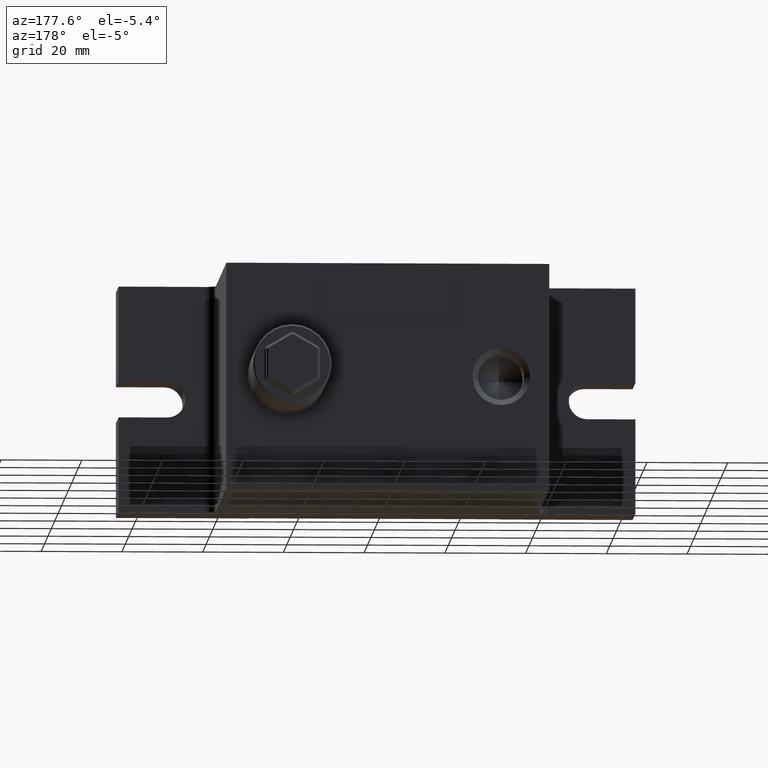
[diagram: clean part render]
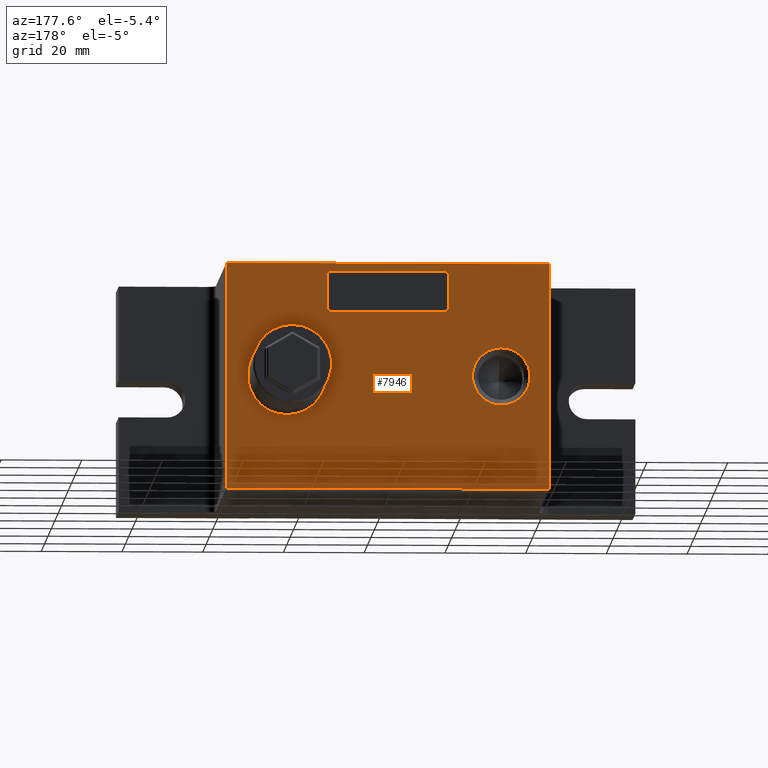
[diagram: same view with one face highlighted and labeled with its STEP entity id]
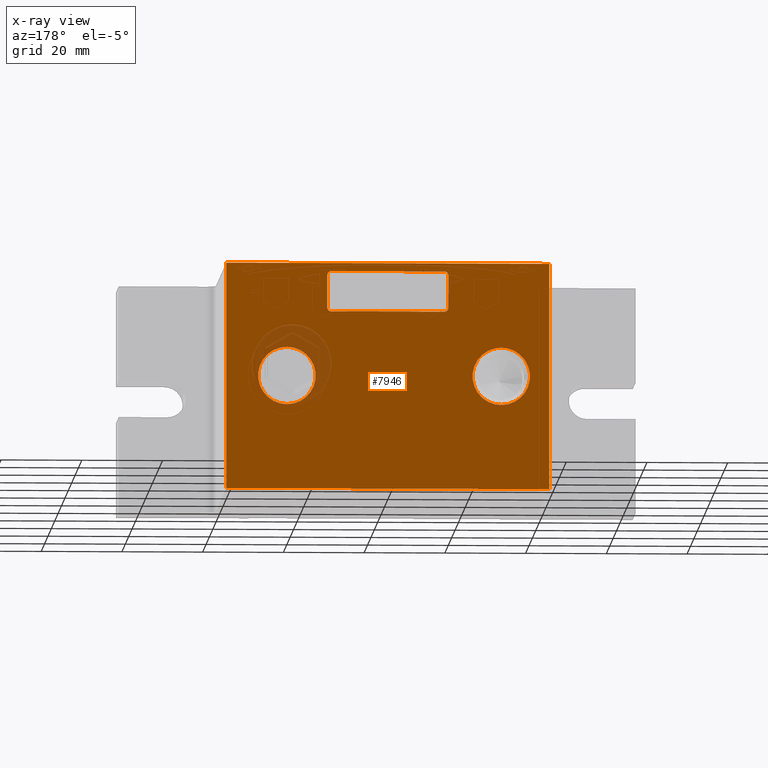
[diagram: x-ray of the same camera — body ghosted, the highlighted face saturated]
A machine part, auxiliary view. The second image highlights one B-rep face of the part: STEP entity #7946.
The next image is the same camera in x-ray: the body ghosted, the highlighted face saturated — about 4% of this face is hidden behind the body in this view.
In plain terms, the highlighted planar face has unit normal (0, -1, 0).
Its self-contained STEP definition (entity closure, byte-faithful):
#19 = CARTESIAN_POINT ( 'NONE',  ( -28.10000000000000100, 40.00000000000000000, 0.0000000000000000000 ) ) ;
#176 = VECTOR ( 'NONE', #7250, 1000.000000000000000 ) ;
#245 = ORIENTED_EDGE ( 'NONE', *, *, #17044, .T. ) ;
#352 = VECTOR ( 'NONE', #12016, 1000.000000000000000 ) ;
#1291 = CARTESIAN_POINT ( 'NONE',  ( -64.00000000000000000, 40.00000000000000000, 28.00000000000000000 ) ) ;
#1369 = CARTESIAN_POINT ( 'NONE',  ( -15.00000000000000000, 40.00000000000000000, 26.00000000000000000 ) ) ;
#1432 = EDGE_CURVE ( 'NONE', #13777, #20425, #1862, .T. ) ;
#1454 = EDGE_CURVE ( 'NONE', #15053, #16449, #8972, .T. ) ;
#1533 = LINE ( 'NONE', #16703, #14431 ) ;
#1786 = DIRECTION ( 'NONE',  ( 0.0000000000000000000, 0.0000000000000000000, -1.000000000000000000 ) ) ;
#1862 = CIRCLE ( 'NONE', #5767, 7.125000000000000000 ) ;
#1883 = AXIS2_PLACEMENT_3D ( 'NONE', #10805, #14509, #10729 ) ;
#2029 = VERTEX_POINT ( 'NONE', #3162 ) ;
#2461 = ORIENTED_EDGE ( 'NONE', *, *, #14290, .F. ) ;
#2755 = EDGE_LOOP ( 'NONE', ( #3056, #10369 ) ) ;
#2890 = CARTESIAN_POINT ( 'NONE',  ( -14.00000000000000000, 40.00000000000000000, 26.00000000000000000 ) ) ;
#3053 = ORIENTED_EDGE ( 'NONE', *, *, #15537, .F. ) ;
#3056 = ORIENTED_EDGE ( 'NONE', *, *, #10620, .T. ) ;
#3162 = CARTESIAN_POINT ( 'NONE',  ( -14.00000000000000000, 40.00000000000000000, 16.00000000000000000 ) ) ;
#3293 = LINE ( 'NONE', #1291, #21402 ) ;
#3339 = FACE_BOUND ( 'NONE', #2755, .T. ) ;
#4197 = CARTESIAN_POINT ( 'NONE',  ( -40.00000000000000000, 40.00000000000000000, 28.00000000000000000 ) ) ;
#4229 = CARTESIAN_POINT ( 'NONE',  ( -15.00000000000000000, 40.00000000000000000, 17.00000000000000000 ) ) ;
#4357 = ORIENTED_EDGE ( 'NONE', *, *, #20302, .T. ) ;
#4426 = DIRECTION ( 'NONE',  ( 1.734723475976804900E-016, 0.0000000000000000000, -1.000000000000000000 ) ) ;
#4595 = CARTESIAN_POINT ( 'NONE',  ( 14.00000000000000000, 40.00000000000000000, 17.00000000000000000 ) ) ;
#4707 = EDGE_CURVE ( 'NONE', #21827, #22073, #8694, .T. ) ;
#4741 = AXIS2_PLACEMENT_3D ( 'NONE', #11870, #8263, #22322 ) ;
#4829 = CIRCLE ( 'NONE', #13197, 0.9999999999999991100 ) ;
#5533 = VERTEX_POINT ( 'NONE', #8897 ) ;
#5748 = LINE ( 'NONE', #11321, #19748 ) ;
#5767 = AXIS2_PLACEMENT_3D ( 'NONE', #18189, #7650, #21711 ) ;
#5879 = CARTESIAN_POINT ( 'NONE',  ( 25.00000000000000000, 40.00000000000000000, 0.0000000000000000000 ) ) ;
#5958 = DIRECTION ( 'NONE',  ( 0.0000000000000000000, 0.0000000000000000000, -1.000000000000000000 ) ) ;
#6226 = ORIENTED_EDGE ( 'NONE', *, *, #10916, .F. ) ;
#6495 = CARTESIAN_POINT ( 'NONE',  ( -40.00000000000000000, 40.00000000000000000, -28.00000000000000000 ) ) ;
#6513 = CARTESIAN_POINT ( 'NONE',  ( 25.00000000000000000, 40.00000000000000000, -7.124999999999986700 ) ) ;
#6732 = VERTEX_POINT ( 'NONE', #2890 ) ;
#6881 = ORIENTED_EDGE ( 'NONE', *, *, #18555, .T. ) ;
#7021 = LINE ( 'NONE', #13138, #7837 ) ;
#7103 = EDGE_CURVE ( 'NONE', #13253, #2029, #14901, .T. ) ;
#7250 = DIRECTION ( 'NONE',  ( -1.000000000000000000, 0.0000000000000000000, 0.0000000000000000000 ) ) ;
#7412 = AXIS2_PLACEMENT_3D ( 'NONE', #4595, #18635, #8089 ) ;
#7430 = ORIENTED_EDGE ( 'NONE', *, *, #7103, .T. ) ;
#7644 = DIRECTION ( 'NONE',  ( 0.0000000000000000000, -1.000000000000000000, 0.0000000000000000000 ) ) ;
#7650 = DIRECTION ( 'NONE',  ( 0.0000000000000000000, -1.000000000000000000, 0.0000000000000000000 ) ) ;
#7736 = LINE ( 'NONE', #20650, #352 ) ;
#7837 = VECTOR ( 'NONE', #4426, 1000.000000000000000 ) ;
#7884 = EDGE_CURVE ( 'NONE', #16449, #15053, #16778, .T. ) ;
#7946 = ADVANCED_FACE ( 'NONE', ( #10710, #3339, #12375, #20346 ), #16353, .F. ) ;
#7984 = CIRCLE ( 'NONE', #4741, 0.9999999999999991100 ) ;
#8089 = DIRECTION ( 'NONE',  ( 1.000000000000000000, 0.0000000000000000000, 0.0000000000000000000 ) ) ;
#8263 = DIRECTION ( 'NONE',  ( -0.0000000000000000000, -1.000000000000000000, -0.0000000000000000000 ) ) ;
#8272 = ORIENTED_EDGE ( 'NONE', *, *, #14258, .F. ) ;
#8334 = AXIS2_PLACEMENT_3D ( 'NONE', #5879, #7644, #12940 ) ;
#8694 = CIRCLE ( 'NONE', #7412, 0.9999999999999991100 ) ;
#8801 = CARTESIAN_POINT ( 'NONE',  ( 15.00000000000000000, 40.00000000000000000, 17.00000000000000000 ) ) ;
#8841 = VERTEX_POINT ( 'NONE', #20356 ) ;
#8897 = CARTESIAN_POINT ( 'NONE',  ( 14.00000000000000000, 40.00000000000000000, 26.00000000000000000 ) ) ;
#8970 = VERTEX_POINT ( 'NONE', #6495 ) ;
#8972 = CIRCLE ( 'NONE', #12374, 7.125000000000000000 ) ;
#9101 = EDGE_LOOP ( 'NONE', ( #2461, #10988, #245, #6881 ) ) ;
#9397 = DIRECTION ( 'NONE',  ( 0.0000000000000000000, -1.000000000000000000, 0.0000000000000000000 ) ) ;
#10015 = CARTESIAN_POINT ( 'NONE',  ( 14.00000000000000000, 40.00000000000000000, 16.00000000000000000 ) ) ;
#10017 = DIRECTION ( 'NONE',  ( -1.000000000000000000, 0.0000000000000000000, 0.0000000000000000000 ) ) ;
#10240 = EDGE_LOOP ( 'NONE', ( #13562, #14881 ) ) ;
#10327 = DIRECTION ( 'NONE',  ( 0.0000000000000000000, 0.0000000000000000000, 1.000000000000000000 ) ) ;
#10369 = ORIENTED_EDGE ( 'NONE', *, *, #1432, .T. ) ;
#10620 = EDGE_CURVE ( 'NONE', #20425, #13777, #15848, .T. ) ;
#10710 = FACE_BOUND ( 'NONE', #22395, .T. ) ;
#10729 = DIRECTION ( 'NONE',  ( 0.0000000000000000000, 0.0000000000000000000, -1.000000000000000000 ) ) ;
#10805 = CARTESIAN_POINT ( 'NONE',  ( -64.00000000000000000, 40.00000000000000000, 28.00000000000000000 ) ) ;
#10916 = EDGE_CURVE ( 'NONE', #21827, #2029, #13885, .T. ) ;
#10988 = ORIENTED_EDGE ( 'NONE', *, *, #14404, .F. ) ;
#11321 = CARTESIAN_POINT ( 'NONE',  ( -40.00000000000000000, 40.00000000000000000, -28.00000000000000000 ) ) ;
#11352 = CARTESIAN_POINT ( 'NONE',  ( 14.00000000000000000, 40.00000000000000000, 25.00000000000000000 ) ) ;
#11440 = CARTESIAN_POINT ( 'NONE',  ( -14.00000000000000000, 40.00000000000000000, 17.00000000000000000 ) ) ;
#11870 = CARTESIAN_POINT ( 'NONE',  ( -14.00000000000000000, 40.00000000000000000, 25.00000000000000000 ) ) ;
#12016 = DIRECTION ( 'NONE',  ( -1.000000000000000000, 0.0000000000000000000, 0.0000000000000000000 ) ) ;
#12030 = LINE ( 'NONE', #17092, #21129 ) ;
#12276 = DIRECTION ( 'NONE',  ( 0.0000000000000000000, -1.000000000000000000, 0.0000000000000000000 ) ) ;
#12306 = VECTOR ( 'NONE', #20712, 1000.000000000000000 ) ;
#12374 = AXIS2_PLACEMENT_3D ( 'NONE', #14641, #9397, #5958 ) ;
#12375 = FACE_BOUND ( 'NONE', #10240, .T. ) ;
#12940 = DIRECTION ( 'NONE',  ( 0.0000000000000000000, 0.0000000000000000000, -1.000000000000000000 ) ) ;
#12961 = EDGE_CURVE ( 'NONE', #6732, #8841, #7984, .T. ) ;
#13005 = DIRECTION ( 'NONE',  ( 3.469446951953615200E-016, 0.0000000000000000000, 1.000000000000000000 ) ) ;
#13138 = CARTESIAN_POINT ( 'NONE',  ( 15.00000000000000000, 40.00000000000000000, 16.00000000000000000 ) ) ;
#13153 = LINE ( 'NONE', #1369, #12306 ) ;
#13192 = AXIS2_PLACEMENT_3D ( 'NONE', #19, #12276, #1786 ) ;
#13197 = AXIS2_PLACEMENT_3D ( 'NONE', #11352, #18510, #13865 ) ;
#13253 = VERTEX_POINT ( 'NONE', #4229 ) ;
#13305 = CARTESIAN_POINT ( 'NONE',  ( -28.10000000000000100, 40.00000000000000000, 7.124999999999989300 ) ) ;
#13562 = ORIENTED_EDGE ( 'NONE', *, *, #7884, .T. ) ;
#13679 = VERTEX_POINT ( 'NONE', #4197 ) ;
#13777 = VERTEX_POINT ( 'NONE', #6513 ) ;
#13865 = DIRECTION ( 'NONE',  ( 1.000000000000000000, 0.0000000000000000000, 0.0000000000000000000 ) ) ;
#13885 = LINE ( 'NONE', #17783, #176 ) ;
#14258 = EDGE_CURVE ( 'NONE', #6732, #5533, #13153, .T. ) ;
#14290 = EDGE_CURVE ( 'NONE', #20056, #13679, #3293, .T. ) ;
#14404 = EDGE_CURVE ( 'NONE', #20053, #20056, #12030, .T. ) ;
#14431 = VECTOR ( 'NONE', #13005, 1000.000000000000000 ) ;
#14509 = DIRECTION ( 'NONE',  ( 0.0000000000000000000, -1.000000000000000000, 0.0000000000000000000 ) ) ;
#14641 = CARTESIAN_POINT ( 'NONE',  ( -28.10000000000000100, 40.00000000000000000, 0.0000000000000000000 ) ) ;
#14848 = CARTESIAN_POINT ( 'NONE',  ( 15.00000000000000000, 40.00000000000000000, 25.00000000000000000 ) ) ;
#14881 = ORIENTED_EDGE ( 'NONE', *, *, #1454, .T. ) ;
#14901 = CIRCLE ( 'NONE', #20401, 0.9999999999999991100 ) ;
#15053 = VERTEX_POINT ( 'NONE', #16376 ) ;
#15112 = CARTESIAN_POINT ( 'NONE',  ( 25.00000000000000000, 40.00000000000000000, 7.124999999999986700 ) ) ;
#15288 = DIRECTION ( 'NONE',  ( 1.000000000000000000, 0.0000000000000000000, 0.0000000000000000000 ) ) ;
#15537 = EDGE_CURVE ( 'NONE', #13253, #8841, #1533, .T. ) ;
#15848 = CIRCLE ( 'NONE', #8334, 7.125000000000000000 ) ;
#16353 = PLANE ( 'NONE',  #1883 ) ;
#16376 = CARTESIAN_POINT ( 'NONE',  ( -28.10000000000000100, 40.00000000000000000, -7.124999999999989300 ) ) ;
#16449 = VERTEX_POINT ( 'NONE', #13305 ) ;
#16463 = VERTEX_POINT ( 'NONE', #14848 ) ;
#16703 = CARTESIAN_POINT ( 'NONE',  ( -15.00000000000000000, 40.00000000000000000, 16.00000000000000000 ) ) ;
#16778 = CIRCLE ( 'NONE', #13192, 7.125000000000000000 ) ;
#17044 = EDGE_CURVE ( 'NONE', #20053, #8970, #7736, .T. ) ;
#17092 = CARTESIAN_POINT ( 'NONE',  ( 40.00000000000000000, 40.00000000000000000, -28.00000000000000000 ) ) ;
#17783 = CARTESIAN_POINT ( 'NONE',  ( -15.00000000000000000, 40.00000000000000000, 16.00000000000000000 ) ) ;
#18189 = CARTESIAN_POINT ( 'NONE',  ( 25.00000000000000000, 40.00000000000000000, 0.0000000000000000000 ) ) ;
#18510 = DIRECTION ( 'NONE',  ( -0.0000000000000000000, -1.000000000000000000, -0.0000000000000000000 ) ) ;
#18555 = EDGE_CURVE ( 'NONE', #8970, #13679, #5748, .T. ) ;
#18635 = DIRECTION ( 'NONE',  ( -0.0000000000000000000, -1.000000000000000000, -0.0000000000000000000 ) ) ;
#18684 = DIRECTION ( 'NONE',  ( -0.0000000000000000000, -1.000000000000000000, -0.0000000000000000000 ) ) ;
#18907 = ORIENTED_EDGE ( 'NONE', *, *, #20281, .F. ) ;
#18917 = ORIENTED_EDGE ( 'NONE', *, *, #4707, .T. ) ;
#19015 = CARTESIAN_POINT ( 'NONE',  ( 40.00000000000000000, 40.00000000000000000, 28.00000000000000000 ) ) ;
#19748 = VECTOR ( 'NONE', #20408, 1000.000000000000000 ) ;
#20053 = VERTEX_POINT ( 'NONE', #20940 ) ;
#20056 = VERTEX_POINT ( 'NONE', #19015 ) ;
#20281 = EDGE_CURVE ( 'NONE', #16463, #22073, #7021, .T. ) ;
#20302 = EDGE_CURVE ( 'NONE', #16463, #5533, #4829, .T. ) ;
#20346 = FACE_OUTER_BOUND ( 'NONE', #9101, .T. ) ;
#20356 = CARTESIAN_POINT ( 'NONE',  ( -15.00000000000000000, 40.00000000000000000, 25.00000000000000000 ) ) ;
#20401 = AXIS2_PLACEMENT_3D ( 'NONE', #11440, #18684, #15288 ) ;
#20408 = DIRECTION ( 'NONE',  ( 0.0000000000000000000, 0.0000000000000000000, 1.000000000000000000 ) ) ;
#20425 = VERTEX_POINT ( 'NONE', #15112 ) ;
#20650 = CARTESIAN_POINT ( 'NONE',  ( -64.00000000000000000, 40.00000000000000000, -28.00000000000000000 ) ) ;
#20712 = DIRECTION ( 'NONE',  ( 1.000000000000000000, 0.0000000000000000000, 0.0000000000000000000 ) ) ;
#20940 = CARTESIAN_POINT ( 'NONE',  ( 40.00000000000000000, 40.00000000000000000, -28.00000000000000000 ) ) ;
#21129 = VECTOR ( 'NONE', #10327, 1000.000000000000000 ) ;
#21402 = VECTOR ( 'NONE', #10017, 1000.000000000000000 ) ;
#21711 = DIRECTION ( 'NONE',  ( 0.0000000000000000000, 0.0000000000000000000, -1.000000000000000000 ) ) ;
#21827 = VERTEX_POINT ( 'NONE', #10015 ) ;
#21843 = ORIENTED_EDGE ( 'NONE', *, *, #12961, .T. ) ;
#22073 = VERTEX_POINT ( 'NONE', #8801 ) ;
#22322 = DIRECTION ( 'NONE',  ( 1.000000000000000000, 0.0000000000000000000, 0.0000000000000000000 ) ) ;
#22395 = EDGE_LOOP ( 'NONE', ( #8272, #21843, #3053, #7430, #6226, #18917, #18907, #4357 ) ) ;